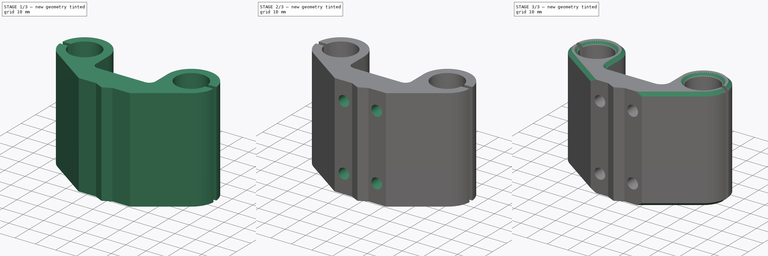
[diagram: build sequence overview — one tinted view per stage of 3, left to right]
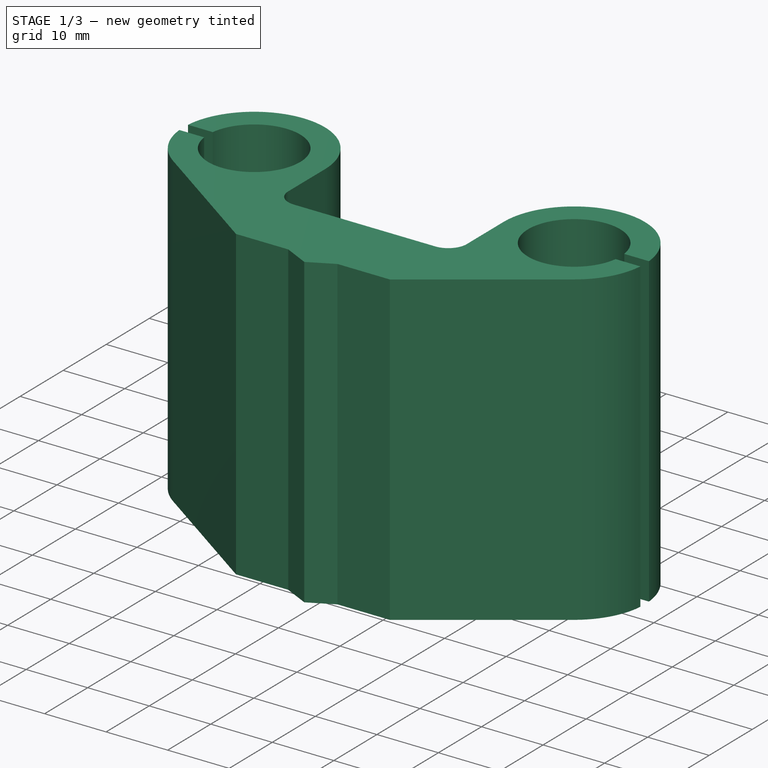
[diagram: stage 1 of 3 — iso view after this stage's code; geometry added in this stage tinted green]
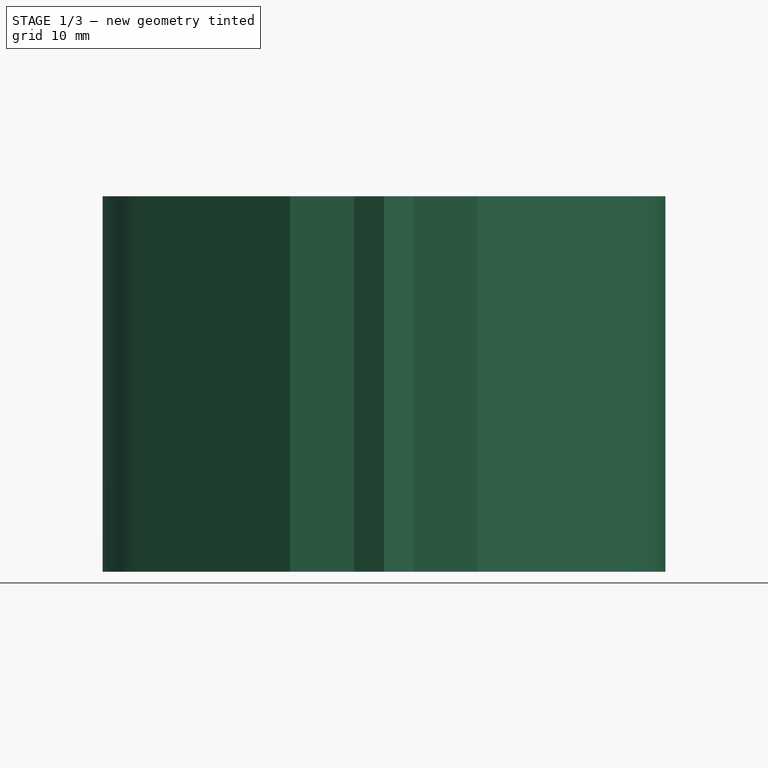
[diagram: stage 1 of 3 — front view after this stage's code; geometry added in this stage tinted green]
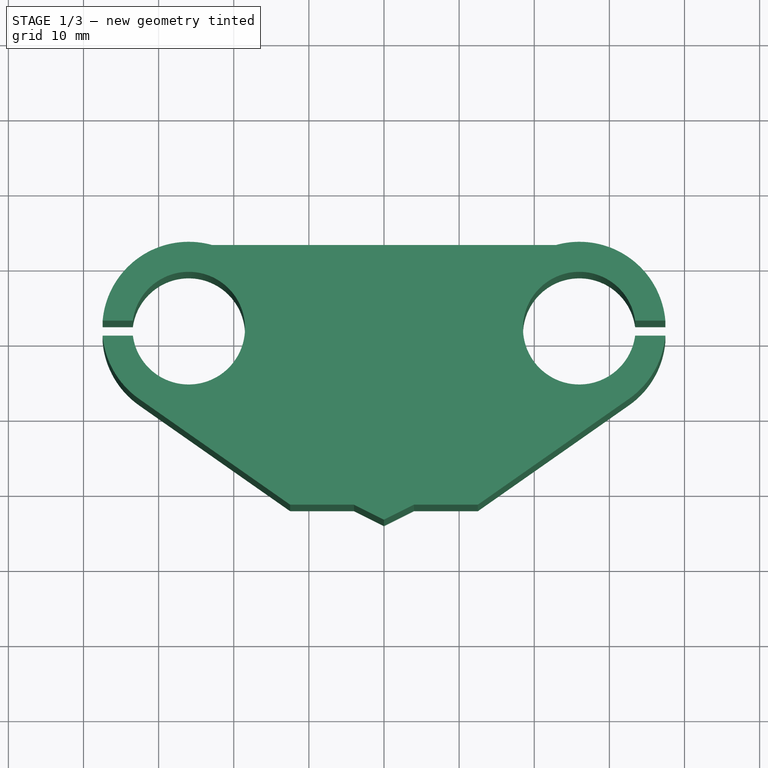
[diagram: stage 1 of 3 — top view after this stage's code; geometry added in this stage tinted green]
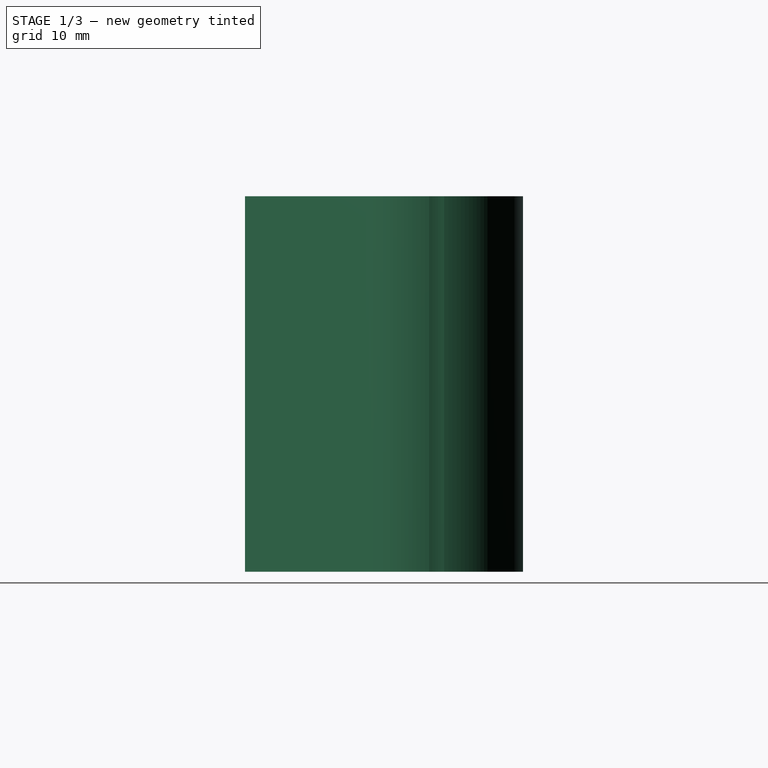
[diagram: stage 1 of 3 — right view after this stage's code; geometry added in this stage tinted green]
FCSTD DOCUMENT  (FreeCAD 0.19R24267 +99 (Git))
Label: z_axis_1
License: All rights reserved
LicenseURL: http://en.wikipedia.org/wiki/All_rights_reserved
objects: Sketcher::SketchObject×5, PartDesign::Pocket×4, PartDesign::Chamfer×2, PartDesign::Pad×1, PartDesign::Body×1
note: 20 computed .brp shape members not serialized (recipe doc carries the construction recipe); baked Part::Feature solids carry a one-line shape summary decoded from their .brp

FEATURE [Sketcher::SketchObject] Sketch
  FullyConstrained = true
  MapMode = 5
  Support = -> [XY_Plane]
  sketch-geometry (23):
    g0: ArcOfCircle CenterX=-26 CenterY=11.5 CenterZ=0 NormalX=0 NormalY=0 NormalZ=1 AngleXU=0 Radius=7.5 StartAngle=3.27532 EndAngle=9.29105
    g1: ArcOfCircle CenterX=26 CenterY=11.5 CenterZ=0 NormalX=0 NormalY=0 NormalZ=1 AngleXU=0 Radius=7.5 StartAngle=0.133732 EndAngle=6.14945
    g2: ArcOfCircle CenterX=-26 CenterY=11.5 CenterZ=0 NormalX=0 NormalY=0 NormalZ=1 AngleXU=0 Radius=11.5 StartAngle=3.22866 EndAngle=4.10125
    g3: ArcOfCircle CenterX=26 CenterY=11.5 CenterZ=0 NormalX=0 NormalY=0 NormalZ=1 AngleXU=0 Radius=11.5 StartAngle=0.0870665 EndAngle=1.5708
    g4: Circle CenterX=0 CenterY=11.5 CenterZ=0 NormalX=0 NormalY=0 NormalZ=1 AngleXU=0 Radius=10.5
    g5: LineSegment StartX=-26 StartY=23 StartZ=0 EndX=26 EndY=23 EndZ=0
    g6: LineSegment StartX=-37.4564 StartY=12.5 StartZ=0 EndX=-33.433 EndY=12.5 EndZ=0
    g7: LineSegment StartX=-37.4564 StartY=10.5 StartZ=0 EndX=-33.433 EndY=10.5 EndZ=0
    g8: LineSegment StartX=-26 StartY=11.5 StartZ=0 EndX=-37.4564 EndY=11.5 EndZ=0
    g9: LineSegment StartX=26 StartY=11.5 StartZ=0 EndX=37.4564 EndY=11.5 EndZ=0
    g10: LineSegment StartX=33.433 StartY=12.5 StartZ=0 EndX=37.4564 EndY=12.5 EndZ=0
    g11: LineSegment StartX=33.433 StartY=10.5 StartZ=0 EndX=37.4564 EndY=10.5 EndZ=0
    g12: GeomPoint X=-12.5 Y=-12 Z=0
    g13: GeomPoint X=12.5 Y=-12 Z=0
    g14: ArcOfCircle CenterX=-26 CenterY=11.5 CenterZ=0 NormalX=0 NormalY=0 NormalZ=1 AngleXU=0 Radius=11.5 StartAngle=1.5708 EndAngle=3.05453
    g15: ArcOfCircle CenterX=26 CenterY=11.5 CenterZ=0 NormalX=0 NormalY=0 NormalZ=1 AngleXU=0 Radius=11.5 StartAngle=5.32353 EndAngle=6.19612
    g16: LineSegment StartX=-32.5987 StartY=2.08158 StartZ=0 EndX=-12.5 EndY=-12 EndZ=0
    g17: LineSegment StartX=-12.5 StartY=-12 StartZ=0 EndX=-4 EndY=-12 EndZ=0
    g18: LineSegment StartX=12.5 StartY=-12 StartZ=0 EndX=32.5987 EndY=2.08158 EndZ=0
    g19: LineSegment StartX=-26 StartY=11.5 StartZ=0 EndX=-26 EndY=-12 EndZ=0
    g20: LineSegment StartX=-4 StartY=-12 StartZ=0 EndX=0 EndY=-14 EndZ=0
    g21: LineSegment StartX=0 StartY=-14 StartZ=0 EndX=4 EndY=-12 EndZ=0
    g22: LineSegment StartX=4 StartY=-12 StartZ=0 EndX=12.5 EndY=-12 EndZ=0
  constraints (61):
    c: DistanceX(g0,g1) = 52
    c: Symmetric(g1,g0,g-2)
    c: Diameter(g0) = 15
    c: Equal(g0,g1)
    c: Coincident(g2,g0)
    c: Diameter(g2) = 23
    c: Coincident(g3,g1)
    c: Equal(g2,g3)
    c: Tangent(g2,g-1)
    c: PointOnObject(g4,g-2)
    c: Diameter(g4) = 21
    c: Horizontal(g4,g1)
    c: Horizontal(g5)
    c: Horizontal(g6)
    c: Horizontal(g7)
    c: DistanceY(g7,g6) = 2
    c: Coincident(g8,g0)
    c: Horizontal(g8)
    c: Symmetric(g6,g7,g8)
    c: Coincident(g14,g6)
    c: Coincident(g0,g6)
    c: PointOnObject(g0,g7)
    c: Coincident(g2,g7)
    c: Coincident(g9,g1)
    c: Horizontal(g9)
    c: Horizontal(g10)
    c: Horizontal(g11)
    c: DistanceY(g11,g10) = 2
    c: Symmetric(g10,g11,g9)
    c: Coincident(g3,g10)
    c: Coincident(g15,g11)
    c: Coincident(g1,g10)
    c: PointOnObject(g1,g11)
    c: Tangent(g14,g5) = 1.5708
    c: Coincident(g2,g14)
    c: Equal(g3,g15)
    c: Coincident(g3,g15)
    c: Coincident(g3,g5)
    c: Vertical(g3,g1)
    c: Coincident(g16,g12)
    c: Coincident(g17,g16)
    c: Coincident(g22,g13)
    c: Coincident(g18,g22)
    c: Tangent(g16,g2) = -1.5708
    c: Tangent(g18,g15) = -1.5708
    c: Coincident(g19,g0)
    c: Vertical(g19)
    c: DistanceY(g19,g19) = 23.5
    c: Horizontal(g19,g16)
    c: DistanceX(g17,g22) = 25
    c: Symmetric(g16,g22,g-2)
    c: PointOnObject(g20,g-2)
    c: Coincident(g21,g20)
    c: Equal(g21,g20)
    c: DistanceY(g20,g20) = 2
    c: DistanceX(g20,g21) = 8
    c: Coincident(g17,g20)
    c: Coincident(g22,g21)
    c: Tangent(g17,g22)
    c: Vertical(g9,g3)
    c: Vertical(g8,g6)
FEATURE [PartDesign::Pad] Pad
  Direction = (1,1,1)
  Length = 50
  Length2 = 100
  Profile = -> Sketch
  Type = 0
FEATURE [Sketcher::SketchObject] Sketch001
  ExternalGeometry = -> [Pad]
  FullyConstrained = true
  MapMode = 5
  Placement = pos=(0,0,50) rot=(0,0,1;0rad)
  Support = -> [Pad]
  sketch-geometry (10):
    g0: LineSegment StartX=-26 StartY=23 StartZ=0 EndX=26 EndY=23 EndZ=0
    g1: ArcOfCircle CenterX=-26 CenterY=11.5 CenterZ=0 NormalX=0 NormalY=0 NormalZ=1 AngleXU=0 Radius=11.5 StartAngle=1e-16 EndAngle=1.5708
    g2: ArcOfCircle CenterX=26 CenterY=11.5 CenterZ=0 NormalX=0 NormalY=0 NormalZ=1 AngleXU=0 Radius=11.5 StartAngle=1.5708 EndAngle=3.14159
    g3: LineSegment StartX=-14.5 StartY=11.5 StartZ=0 EndX=-14.5 EndY=3 EndZ=0
    g4: LineSegment StartX=-11.5 StartY=0 StartZ=0 EndX=11.5 EndY=0 EndZ=0
    g5: LineSegment StartX=14.5 StartY=3 StartZ=0 EndX=14.5 EndY=11.5 EndZ=0
    g6: ArcOfCircle CenterX=-11.5 CenterY=3 CenterZ=0 NormalX=0 NormalY=0 NormalZ=1 AngleXU=0 Radius=3 StartAngle=3.14159 EndAngle=4.71239
    g7: GeomPoint X=-14.5 Y=0 Z=0
    g8: ArcOfCircle CenterX=11.5 CenterY=3 CenterZ=0 NormalX=0 NormalY=0 NormalZ=1 AngleXU=0 Radius=3 StartAngle=4.71239 EndAngle=6.28319
    g9: GeomPoint X=14.5 Y=0 Z=0
  constraints (22):
    c: Coincident(g0,g-4)
    c: Coincident(g0,g-4)
    c: Coincident(g1,g-3)
    c: Coincident(g2,g-5)
    c: PointOnObject(g7,g-1)
    c: Vertical(g3)
    c: PointOnObject(g9,g-1)
    c: Vertical(g5)
    c: Tangent(g1,g3) = 1.5708
    c: Coincident(g1,g0)
    c: Coincident(g2,g0)
    c: Tangent(g2,g5) = 1.5708
    c: PointOnObject(g7,g3)
    c: PointOnObject(g7,g4)
    c: Tangent(g3,g6) = -1.5708
    c: Tangent(g4,g6) = -1.5708
    c: PointOnObject(g9,g4)
    c: PointOnObject(g9,g5)
    c: Tangent(g4,g8) = -1.5708
    c: Tangent(g5,g8) = -1.5708
    c: Radius(g6) = 3
    c: Equal(g8,g6)
FEATURE [PartDesign::Pocket] Pocket
  BaseFeature = -> Pad
  Length = 25
  Length2 = 100
  Profile = -> Sketch001
  Type = 0
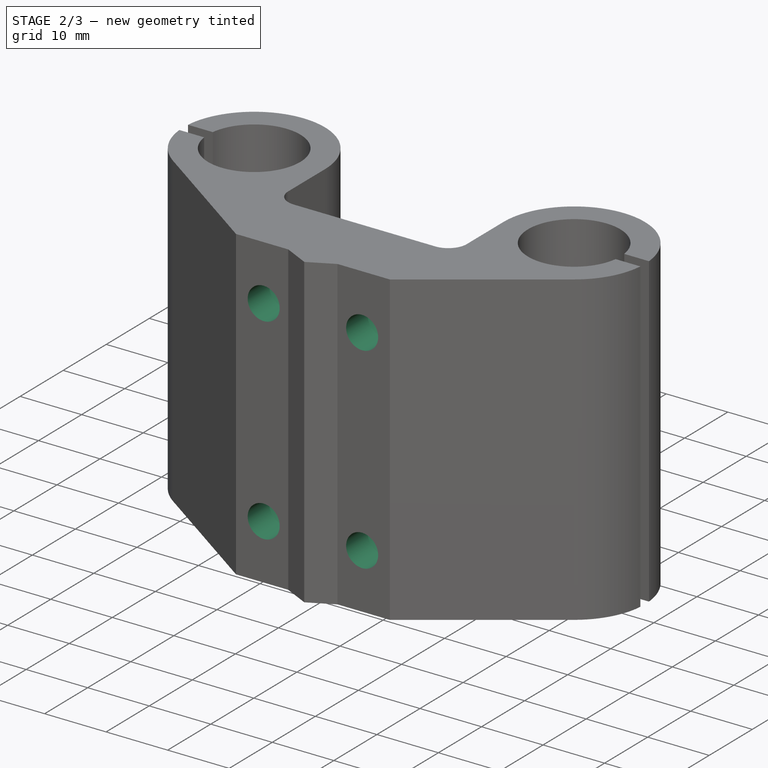
[diagram: stage 2 of 3 — iso view after this stage's code; geometry added in this stage tinted green]
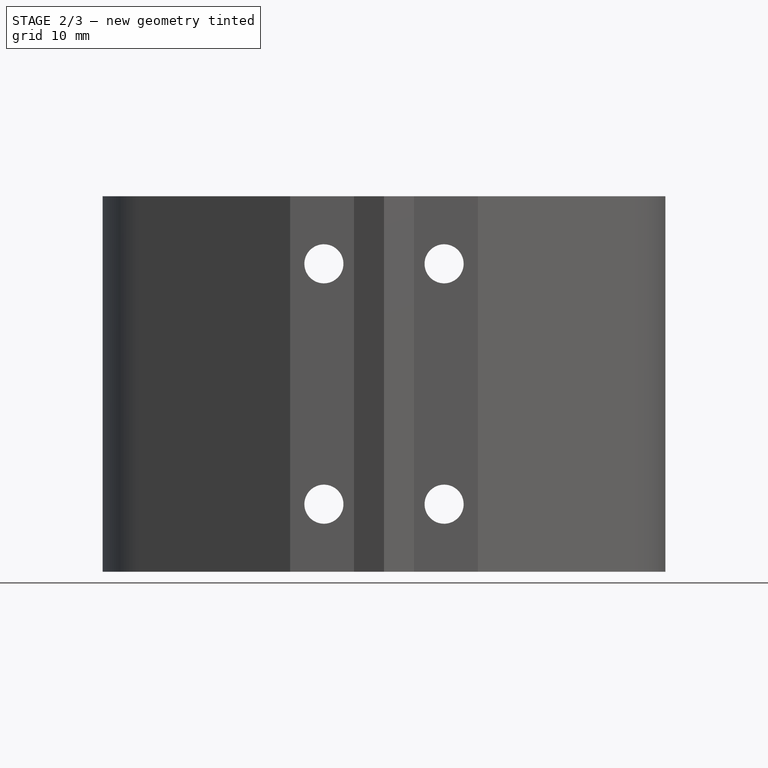
[diagram: stage 2 of 3 — front view after this stage's code; geometry added in this stage tinted green]
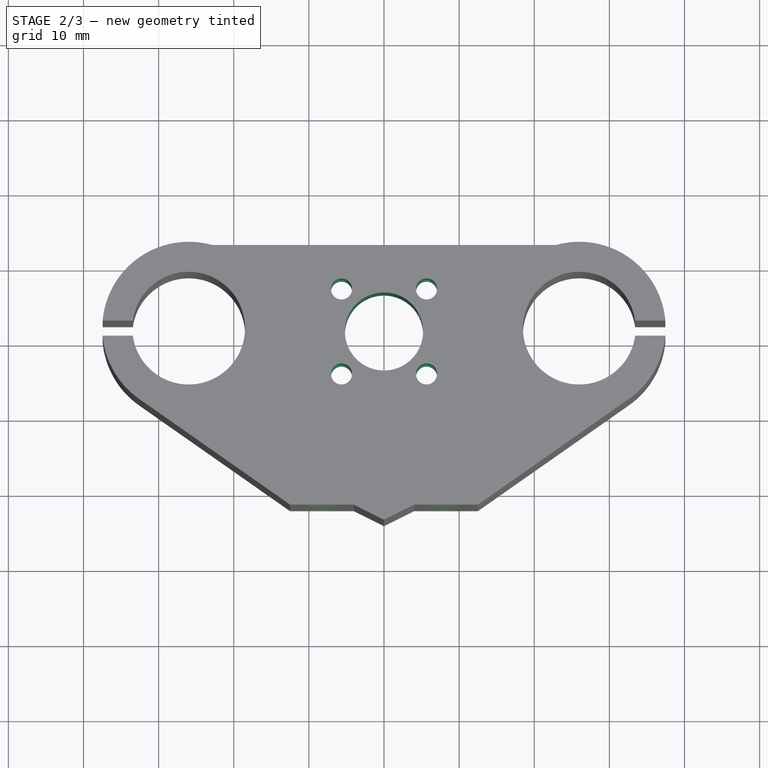
[diagram: stage 2 of 3 — top view after this stage's code; geometry added in this stage tinted green]
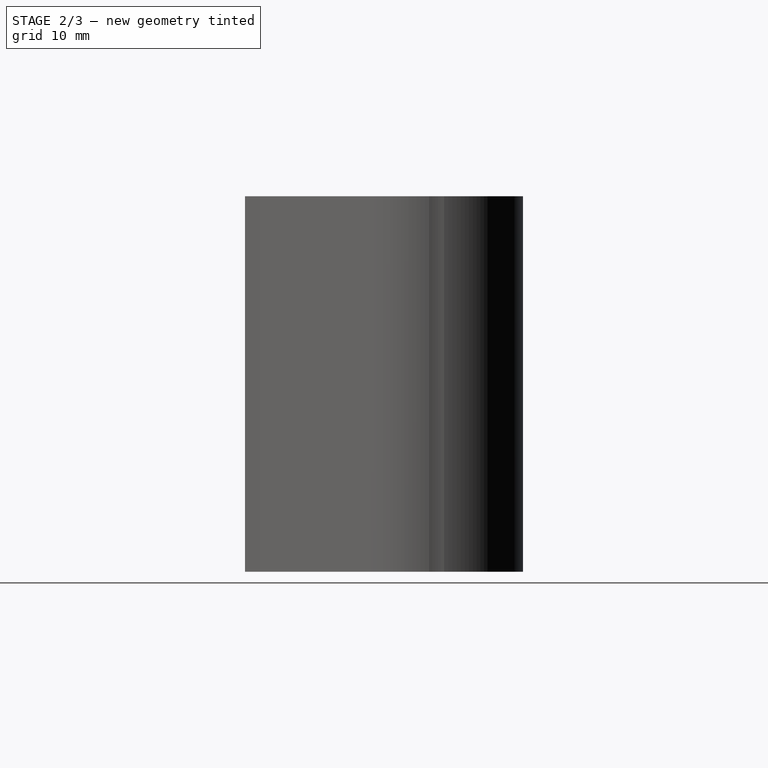
[diagram: stage 2 of 3 — right view after this stage's code; geometry added in this stage tinted green]
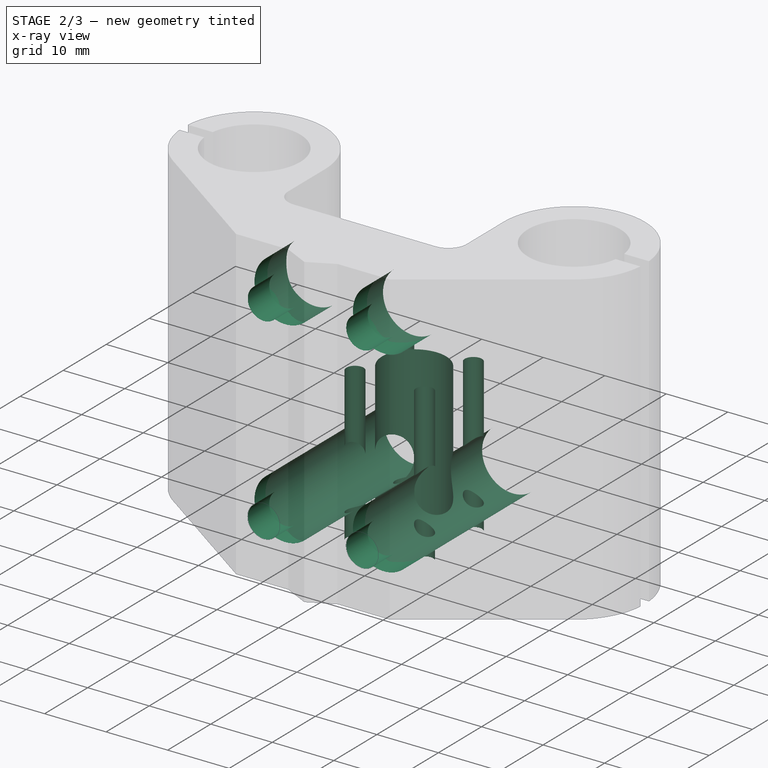
[diagram: stage 2 of 3 — x-ray composite at the iso view; earlier geometry ghosted, this stage's added geometry solid]
FEATURE [Sketcher::SketchObject] Sketch002
  ExternalGeometry = -> [Pocket]
  FullyConstrained = true
  MapMode = 5
  Placement = pos=(2.5e-15,-12,0) rot=(1,0,0;1.5708rad)
  Support = -> [Pocket]
  sketch-geometry (6):
    g0: Circle CenterX=-8 CenterY=41 CenterZ=0 NormalX=0 NormalY=0 NormalZ=1 AngleXU=0 Radius=2.6
    g1: Circle CenterX=8 CenterY=41 CenterZ=0 NormalX=0 NormalY=0 NormalZ=1 AngleXU=0 Radius=2.6
    g2: Circle CenterX=-8 CenterY=9 CenterZ=0 NormalX=0 NormalY=0 NormalZ=1 AngleXU=0 Radius=2.6
    g3: Circle CenterX=8 CenterY=9 CenterZ=0 NormalX=0 NormalY=0 NormalZ=1 AngleXU=0 Radius=2.6
    g4: LineSegment StartX=-12.5 StartY=25 StartZ=0 EndX=8 EndY=25 EndZ=0
    g5: GeomPoint X=-10.6 Y=41 Z=0
  constraints (15):
    c: Diameter(g0) = 5.2
    c: Horizontal(g2,g3)
    c: Vertical(g1,g3)
    c: Equal(g0,g1)
    c: Equal(g1,g3)
    c: Equal(g3,g2)
    c: Symmetric(g0,g1,g-2)
    c: Symmetric(g-3,g-3,g4)
    c: DistanceY(g4,g0) = 16
    c: Symmetric(g0,g2,g4)
    c: PointOnObject(g5,g0)
    c: Horizontal(g5,g0)
    c: DistanceX(g0,g1) = 16
    c: PointOnObject(g4,g-3)
    c: Vertical(g4,g3)
FEATURE [PartDesign::Pocket] Pocket001
  BaseFeature = -> Pocket
  Length = 5
  Length2 = 100
  Profile = -> Sketch002
  Type = 1
FEATURE [Sketcher::SketchObject] Sketch003
  ExternalGeometry = -> [Pocket001]
  FullyConstrained = true
  MapMode = 5
  Placement = pos=(0,23,0) rot=(0,0.707107,0.707107;3.14159rad)
  Support = -> [Pocket001]
  sketch-geometry (4):
    g0: Circle CenterX=-8 CenterY=41 CenterZ=0 NormalX=0 NormalY=0 NormalZ=1 AngleXU=0 Radius=5
    g1: Circle CenterX=8 CenterY=41 CenterZ=0 NormalX=0 NormalY=0 NormalZ=1 AngleXU=0 Radius=5
    g2: Circle CenterX=8 CenterY=9 CenterZ=0 NormalX=0 NormalY=0 NormalZ=1 AngleXU=0 Radius=5
    g3: Circle CenterX=-8 CenterY=9 CenterZ=0 NormalX=0 NormalY=0 NormalZ=1 AngleXU=0 Radius=5
  constraints (8):
    c: Coincident(g0,g-3)
    c: Coincident(g1,g-4)
    c: Coincident(g2,g-5)
    c: Coincident(g3,g-6)
    c: Diameter(g0) = 10
    c: Equal(g0,g1)
    c: Equal(g1,g3)
    c: Equal(g3,g2)
FEATURE [PartDesign::Pocket] Pocket002
  BaseFeature = -> Pocket001
  Length = 0
  Length2 = 100
  Offset = -5
  Profile = -> Sketch003
  Type = 3
  UpToFace = -> Pocket001 [Face19]
FEATURE [Sketcher::SketchObject] Sketch004
  ExternalGeometry = -> [Pocket002]
  FullyConstrained = true
  MapMode = 5
  Placement = pos=(0,0,25) rot=(0,0,1;0rad)
  Support = -> [Pocket002]
  sketch-geometry (10):
    g0: Circle CenterX=0 CenterY=11.5 CenterZ=0 NormalX=0 NormalY=0 NormalZ=1 AngleXU=0 Radius=5.2
    g1: Circle CenterX=0 CenterY=11.5 CenterZ=0 NormalX=0 NormalY=0 NormalZ=1 AngleXU=0 Radius=8
    g2: Circle CenterX=-5.65685 CenterY=17.1569 CenterZ=0 NormalX=0 NormalY=0 NormalZ=1 AngleXU=0 Radius=1.4
    g3: Circle CenterX=5.65685 CenterY=17.1569 CenterZ=0 NormalX=0 NormalY=0 NormalZ=1 AngleXU=0 Radius=1.4
    g4: Circle CenterX=5.65685 CenterY=5.84315 CenterZ=0 NormalX=0 NormalY=0 NormalZ=1 AngleXU=0 Radius=1.4
    g5: Circle CenterX=-5.65685 CenterY=5.84315 CenterZ=0 NormalX=0 NormalY=0 NormalZ=1 AngleXU=0 Radius=1.4
    g6: LineSegment StartX=-5.65685 StartY=17.1569 StartZ=0 EndX=-5.65685 EndY=5.84315 EndZ=0
    g7: LineSegment StartX=-5.65685 StartY=5.84315 StartZ=0 EndX=5.65685 EndY=5.84315 EndZ=0
    g8: LineSegment StartX=5.65685 StartY=5.84315 StartZ=0 EndX=5.65685 EndY=17.1569 EndZ=0
    g9: LineSegment StartX=5.65685 StartY=17.1569 StartZ=0 EndX=-5.65685 EndY=17.1569 EndZ=0
  constraints (25):
    c: PointOnObject(g0,g-2)
    c: Coincident(g1,g0)
    c: Diameter(g1) = 16
    c: Diameter(g0) = 10.4
    c: Horizontal(g-3,g0)
    c: PointOnObject(g2,g1)
    c: PointOnObject(g3,g1)
    c: PointOnObject(g4,g1)
    c: PointOnObject(g5,g1)
    c: Diameter(g2) = 2.8
    c: Equal(g2,g3)
    c: Equal(g3,g4)
    c: Equal(g4,g5)
    c: Coincident(g6,g2)
    c: Coincident(g6,g5)
    c: Coincident(g7,g5)
    c: Coincident(g7,g4)
    c: Coincident(g8,g4)
    c: Coincident(g8,g3)
    c: Vertical(g8)
    c: Coincident(g9,g3)
    c: Coincident(g9,g2)
    c: Equal(g9,g8)
    c: Equal(g8,g7)
    c: Equal(g7,g6)
FEATURE [PartDesign::Pocket] Pocket003
  BaseFeature = -> Pocket002
  Length = 5
  Length2 = 100
  Profile = -> Sketch004
  Type = 1
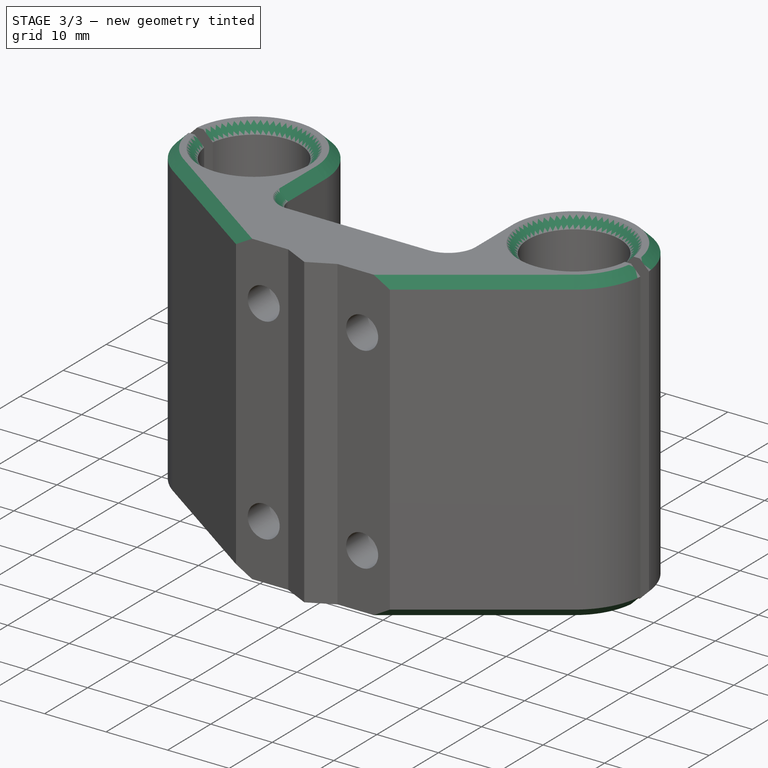
[diagram: stage 3 of 3 — iso view after this stage's code; geometry added in this stage tinted green]
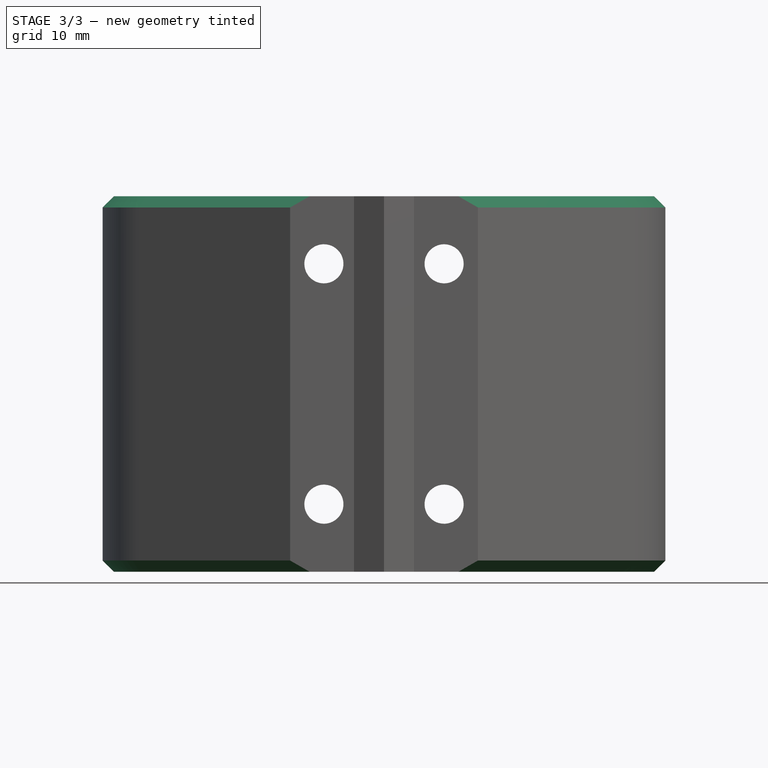
[diagram: stage 3 of 3 — front view after this stage's code; geometry added in this stage tinted green]
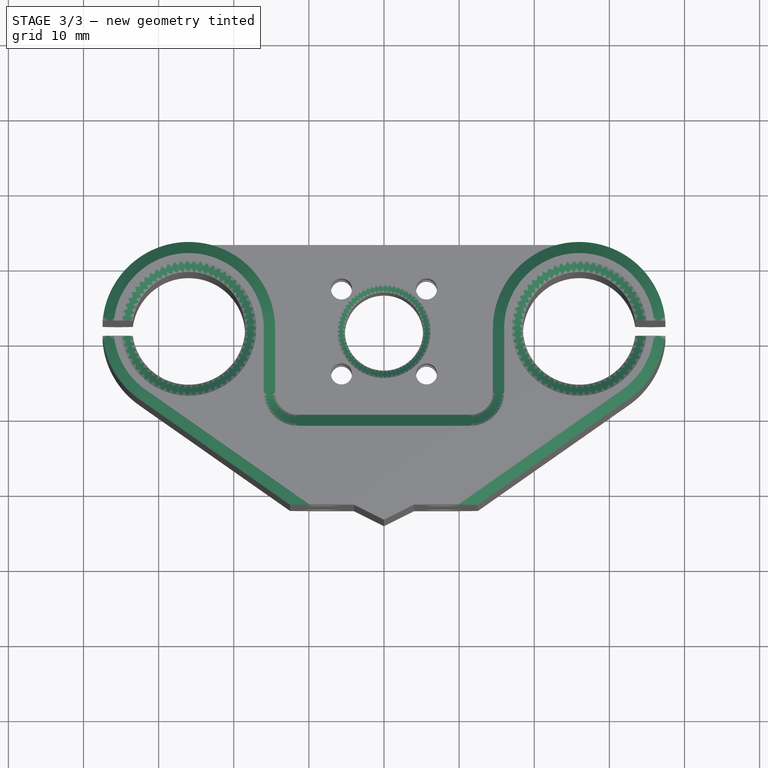
[diagram: stage 3 of 3 — top view after this stage's code; geometry added in this stage tinted green]
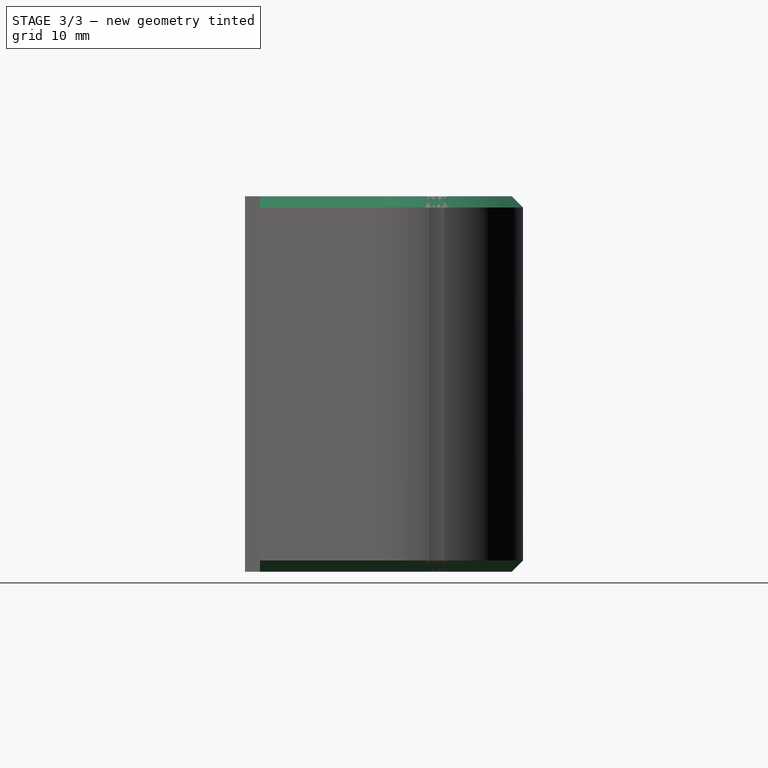
[diagram: stage 3 of 3 — right view after this stage's code; geometry added in this stage tinted green]
FEATURE [PartDesign::Chamfer] Chamfer
  Angle = 45
  Base = -> Pocket003 [Edge41,Edge40,Edge42,Edge43,Edge44,Edge45,Edge46,Edge47,Edge48,Edge7,Edge30,Edge35,Edge36,Edge38,Edge10,Edge18,Edge16,Edge14,Edge9,Edge6,Edge11,Edge21,Edge23,Edge22]
  BaseFeature = -> Pocket003
  ChamferType = 0
  FlipDirection = false
  Size = 1.5
  Size2 = 1
  SupportTransform = false
FEATURE [PartDesign::Chamfer] Chamfer001
  Angle = 45
  Base = -> Chamfer [Edge107]
  BaseFeature = -> Chamfer
  ChamferType = 0
  FlipDirection = false
  Size = 1
  Size2 = 1
  SupportTransform = false
FEATURE [PartDesign::Body] Body
  Group = -> [Sketch,Pad,Sketch001,Pocket,Sketch002,Pocket001,Sketch003,Pocket002,Sketch004,Pocket003,Chamfer,Chamfer001]
  Origin = -> Origin
  Tip = -> Chamfer001
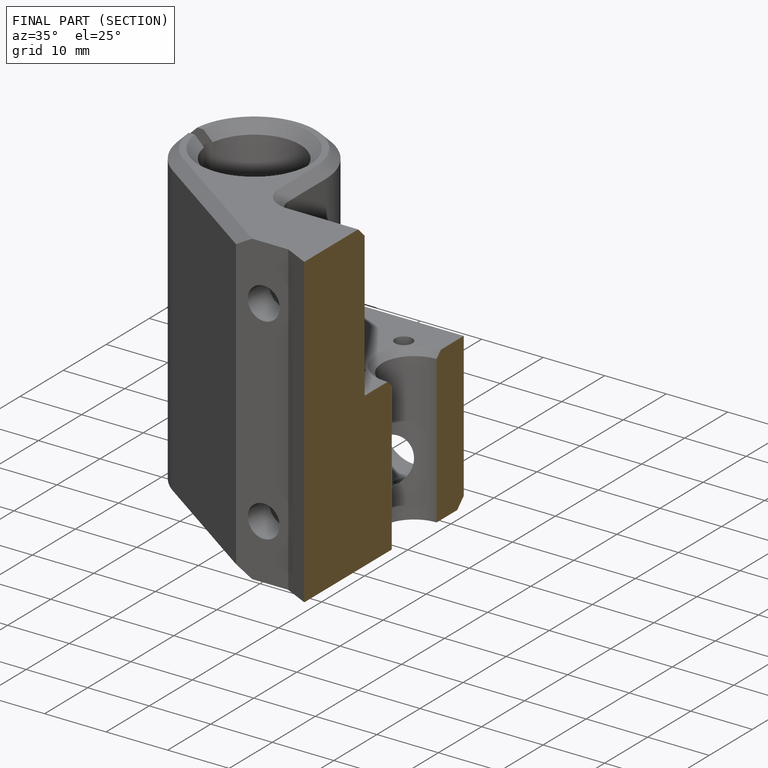
[diagram: finished part — half-section view (interior)]
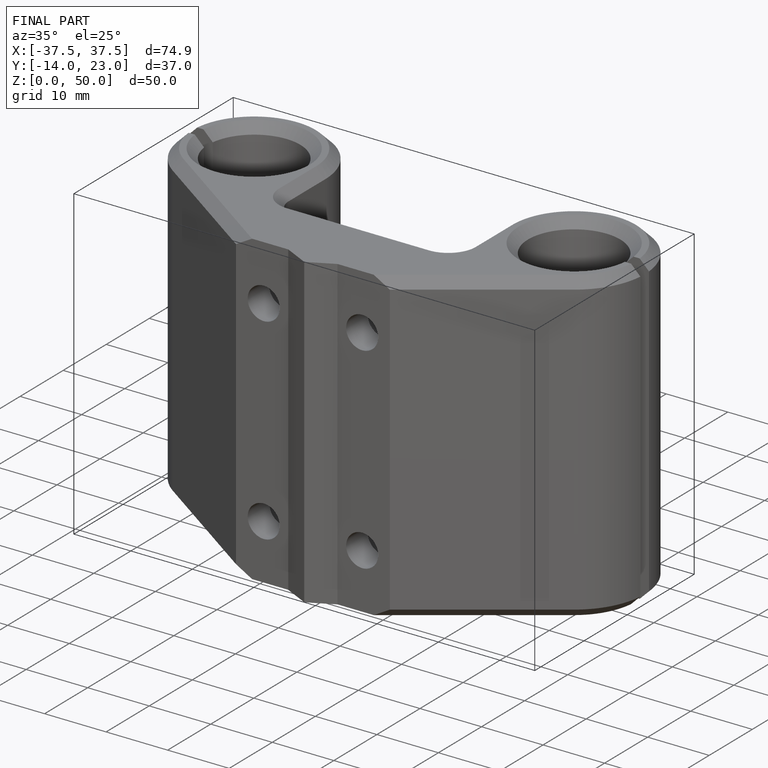
[diagram: finished part — iso view with bounding-box wireframe]
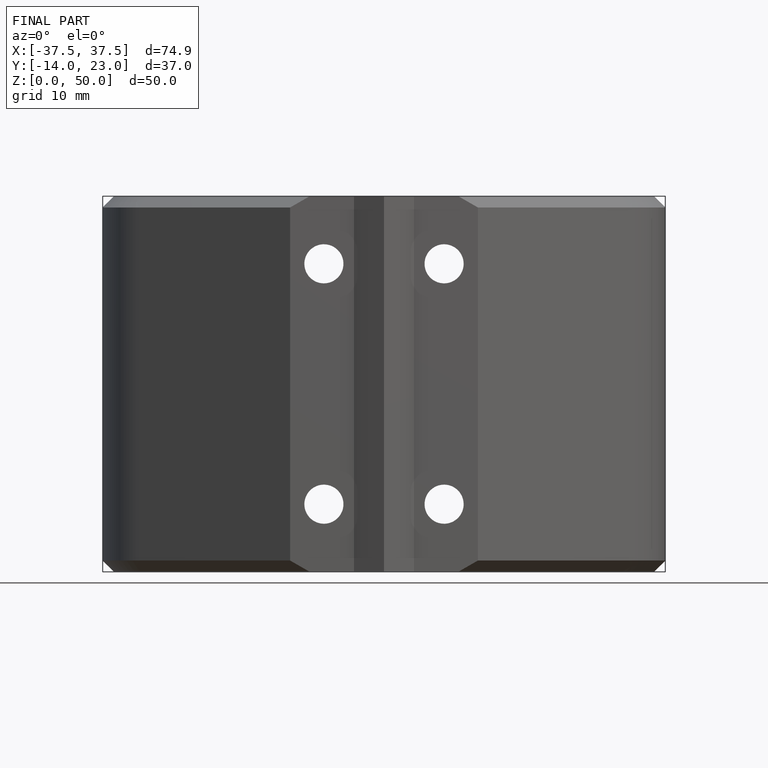
[diagram: finished part — front view with bounding-box wireframe]
